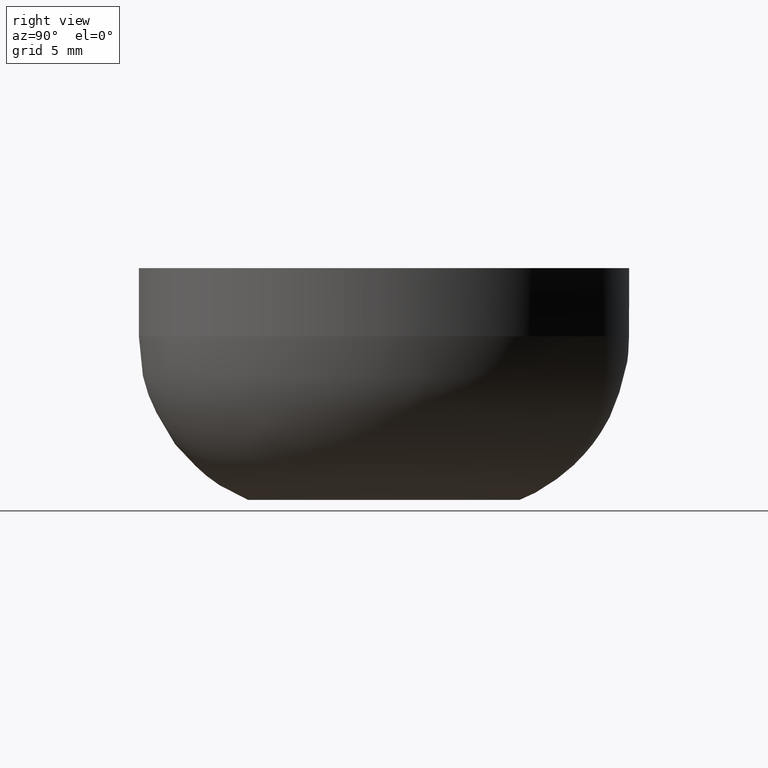
[diagram: clean part render]
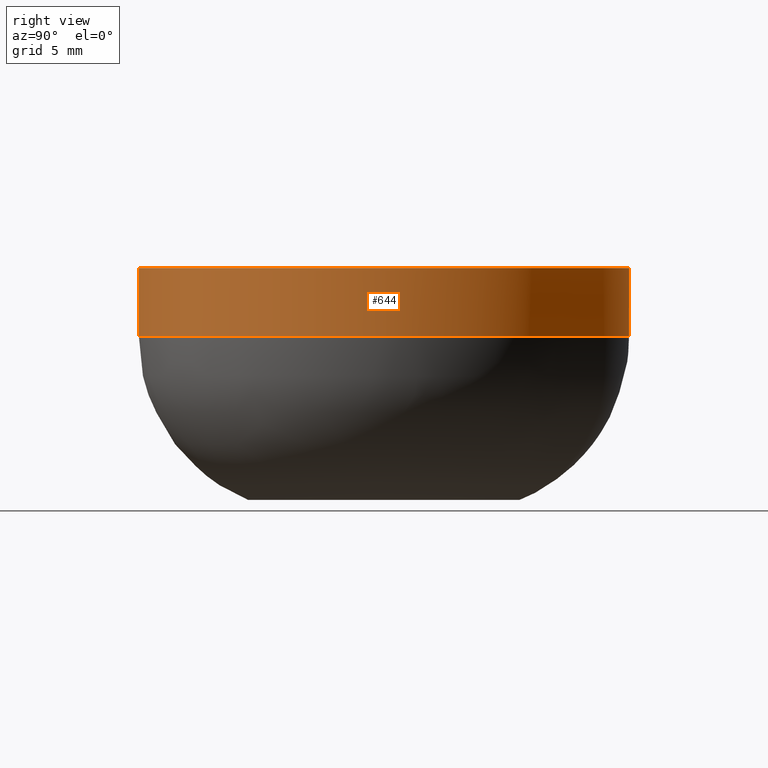
[diagram: same view with one face highlighted and labeled with its STEP entity id]
A machine part, right view. The second image highlights one B-rep face of the part: STEP entity #644.
In plain terms, the highlighted face is a freeform B-spline surface patch.
Its self-contained STEP definition (entity closure, byte-faithful):
#493=CARTESIAN_POINT('',(-16.850584417979835,-6.329123539048298,17.125000000252076));
#494=CARTESIAN_POINT('',(-17.801352348572713,-3.797810130877348,17.125000000252072));
#495=CARTESIAN_POINT('',(-17.966426371593599,-1.098873711627426,17.125000000252069));
#496=CARTESIAN_POINT('',(-19.065300083221029,16.867552659966176,17.125000000252072));
#497=CARTESIAN_POINT('',(-1.098873711627426,17.966426371593599,17.125000000252069));
#498=CARTESIAN_POINT('',(16.867552659966176,19.065300083221029,17.125000000252072));
#499=CARTESIAN_POINT('',(17.966426371593599,1.098873711627426,17.125000000252069));
#500=CARTESIAN_POINT('',(19.065300083221029,-16.867552659966176,17.125000000252072));
#501=CARTESIAN_POINT('',(1.098873711627426,-17.966426371593599,17.125000000252069));
#502=CARTESIAN_POINT('',(-16.850584417979835,-6.329123539048298,11.871874989658863));
#503=CARTESIAN_POINT('',(-17.801352348572713,-3.797810130877348,11.871874989658872));
#504=CARTESIAN_POINT('',(-17.966426371593599,-1.098873711627426,11.871874989658870));
#505=CARTESIAN_POINT('',(-19.065300083221029,16.867552659966176,11.871874989658867));
#506=CARTESIAN_POINT('',(-1.098873711627426,17.966426371593599,11.871874989658870));
#507=CARTESIAN_POINT('',(16.867552659966176,19.065300083221029,11.871874989658867));
#508=CARTESIAN_POINT('',(17.966426371593599,1.098873711627426,11.871874989658870));
#509=CARTESIAN_POINT('',(19.065300083221029,-16.867552659966176,11.871874989658867));
#510=CARTESIAN_POINT('',(1.098873711627426,-17.966426371593599,11.871874989658870));
#518=(BOUNDED_SURFACE()B_SPLINE_SURFACE(2,1,((#493,#502),(#494,#503),(#495,#504),(#496,#505),(#497,#506),(#498,#507),(#499,#508),(#500,#509),(#501,#510)),.UNSPECIFIED.,.F.,.F.,.U.)B_SPLINE_SURFACE_WITH_KNOTS((3,2,2,2,3),(2,2),(0.0,5.964675298172566,35.788051789035400,65.611428279898234,95.434804770761062),(0.0,5.253125010593206),.UNSPECIFIED.)GEOMETRIC_REPRESENTATION_ITEM()RATIONAL_B_SPLINE_SURFACE(((0.906274169979695,0.906274169979695),(0.941421356237309,0.941421356237309),(1.0,1.0),(0.707106781186548,0.707106781186548),(1.0,1.0),(0.707106781186548,0.707106781186548),(1.0,1.0),(0.707106781186548,0.707106781186548),(1.0,1.0)))REPRESENTATION_ITEM('')SURFACE());
#519=CARTESIAN_POINT('',(-16.850587385455110,-6.329115638465599,11.999999999999680));
#520=VERTEX_POINT('',#519);
#521=CARTESIAN_POINT('',(-18.0,0.0,11.999999999999440));
#522=VERTEX_POINT('',#521);
#523=CARTESIAN_POINT('',(-16.850587385455107,-6.329115638465599,11.999999999999689));
#524=CARTESIAN_POINT('',(-18.0,-3.268928590280618,11.999999999999540));
#525=CARTESIAN_POINT('',(-18.0,0.0,11.999999999999440));
#533=(BOUNDED_CURVE()B_SPLINE_CURVE(2,(#523,#524,#525),.UNSPECIFIED.,.F.,.U.)B_SPLINE_CURVE_WITH_KNOTS((3,3),(0.940284244955455,1.0),.UNSPECIFIED.)CURVE()GEOMETRIC_REPRESENTATION_ITEM()RATIONAL_B_SPLINE_CURVE((0.893499645263450,0.930038641164511,1.0))REPRESENTATION_ITEM(''));
#534=EDGE_CURVE('',#520,#522,#533,.T.);
#535=ORIENTED_EDGE('',*,*,#534,.F.);
#536=CARTESIAN_POINT('',(-16.850587348847821,-6.329115735928706,17.0));
#537=VERTEX_POINT('',#536);
#538=CARTESIAN_POINT('',(-16.850587348847821,-6.329115735928706,17.0));
#539=CARTESIAN_POINT('',(-16.850587385455110,-6.329115638465599,11.999999999999680));
#540=QUASI_UNIFORM_CURVE('',1,(#538,#539),.UNSPECIFIED.,.F.,.U.);
#541=EDGE_CURVE('',#537,#520,#540,.T.);
#542=ORIENTED_EDGE('',*,*,#541,.F.);
#543=CARTESIAN_POINT('',(-18.0,0.0,17.0));
#544=VERTEX_POINT('',#543);
#545=CARTESIAN_POINT('',(-16.850587348847817,-6.329115735928706,16.999999999999996));
#546=CARTESIAN_POINT('',(-17.999999999999996,-3.268928644053093,17.000000000000007));
#547=CARTESIAN_POINT('',(-18.0,0.0,17.0));
#555=(BOUNDED_CURVE()B_SPLINE_CURVE(2,(#545,#546,#547),.UNSPECIFIED.,.F.,.U.)B_SPLINE_CURVE_WITH_KNOTS((3,3),(0.940284244041880,1.0),.UNSPECIFIED.)CURVE()GEOMETRIC_REPRESENTATION_ITEM()RATIONAL_B_SPLINE_CURVE((0.893499644145449,0.930038640094190,1.0))REPRESENTATION_ITEM(''));
#556=EDGE_CURVE('',#537,#544,#555,.T.);
#557=ORIENTED_EDGE('',*,*,#556,.T.);
#558=CARTESIAN_POINT('',(18.0,0.0,17.0));
#559=VERTEX_POINT('',#558);
#560=CARTESIAN_POINT('',(-18.0,0.0,17.0));
#561=CARTESIAN_POINT('',(-18.000000000000007,18.000000000000007,17.000000000000007));
#562=CARTESIAN_POINT('',(0.0,18.0,17.0));
#563=CARTESIAN_POINT('',(18.000000000000007,18.000000000000007,17.000000000000007));
#564=CARTESIAN_POINT('',(18.0,0.0,17.0));
#572=(BOUNDED_CURVE()B_SPLINE_CURVE(2,(#560,#561,#562,#563,#564),.UNSPECIFIED.,.F.,.U.)B_SPLINE_CURVE_WITH_KNOTS((3,2,3),(0.0,0.250000000000000,0.500000000000000),.UNSPECIFIED.)CURVE()GEOMETRIC_REPRESENTATION_ITEM()RATIONAL_B_SPLINE_CURVE((1.0,0.707106781186547,1.0,0.707106781186547,1.0))REPRESENTATION_ITEM(''));
#573=EDGE_CURVE('',#544,#559,#572,.T.);
#574=ORIENTED_EDGE('',*,*,#573,.T.);
#575=CARTESIAN_POINT('',(1.098867361640900,-17.966426759973160,17.0));
#576=VERTEX_POINT('',#575);
#577=CARTESIAN_POINT('',(18.0,0.0,17.0));
#578=CARTESIAN_POINT('',(18.0,-16.932715200120182,16.999999999999996));
#579=CARTESIAN_POINT('',(1.098867361640900,-17.966426759973164,17.0));
#587=(BOUNDED_CURVE()B_SPLINE_CURVE(2,(#577,#578,#579),.UNSPECIFIED.,.F.,.U.)B_SPLINE_CURVE_WITH_KNOTS((3,3),(0.500000000000000,0.739333023226263),.UNSPECIFIED.)CURVE()GEOMETRIC_REPRESENTATION_ITEM()RATIONAL_B_SPLINE_CURVE((1.0,0.719603921835620,0.976072172374189))REPRESENTATION_ITEM(''));
#588=EDGE_CURVE('',#559,#576,#587,.T.);
#589=ORIENTED_EDGE('',*,*,#588,.T.);
#590=CARTESIAN_POINT('',(1.098867282374241,-17.966426764821261,12.000000000000041));
#591=VERTEX_POINT('',#590);
#592=CARTESIAN_POINT('',(1.098867361640900,-17.966426759973160,17.0));
#593=CARTESIAN_POINT('',(1.098867282374241,-17.966426764821261,12.000000000000041));
#594=QUASI_UNIFORM_CURVE('',1,(#592,#593),.UNSPECIFIED.,.F.,.U.);
#595=EDGE_CURVE('',#576,#591,#594,.T.);
#596=ORIENTED_EDGE('',*,*,#595,.T.);
#597=CARTESIAN_POINT('',(18.0,0.0,12.0));
#598=VERTEX_POINT('',#597);
#599=CARTESIAN_POINT('',(18.0,0.0,12.0));
#600=CARTESIAN_POINT('',(18.0,-16.932715274965776,12.0));
#601=CARTESIAN_POINT('',(1.098867282374240,-17.966426764821268,12.000000000000046));
#609=(BOUNDED_CURVE()B_SPLINE_CURVE(2,(#599,#600,#601),.UNSPECIFIED.,.F.,.U.)B_SPLINE_CURVE_WITH_KNOTS((3,3),(0.500000000000000,0.739333023987528),.UNSPECIFIED.)CURVE()GEOMETRIC_REPRESENTATION_ITEM()RATIONAL_B_SPLINE_CURVE((1.0,0.719603920943743,0.976072174005725))REPRESENTATION_ITEM(''));
#610=EDGE_CURVE('',#598,#591,#609,.T.);
#611=ORIENTED_EDGE('',*,*,#610,.F.);
#612=CARTESIAN_POINT('',(-2.078354027896499,17.879609742237719,11.999999989917240));
#613=VERTEX_POINT('',#612);
#614=CARTESIAN_POINT('',(-2.078354027896499,17.879609742237719,11.999999989917235));
#615=CARTESIAN_POINT('',(-1.042663863149476,18.000000000000004,11.999999999999995));
#616=CARTESIAN_POINT('',(0.0,18.0,12.0));
#617=CARTESIAN_POINT('',(18.000000000000007,18.000000000000007,12.0));
#618=CARTESIAN_POINT('',(18.0,0.0,12.0));
#626=(BOUNDED_CURVE()B_SPLINE_CURVE(2,(#614,#615,#616,#617,#618),.UNSPECIFIED.,.F.,.U.)B_SPLINE_CURVE_WITH_KNOTS((3,2,3),(0.230000019867565,0.250000000000000,0.500000000000000),.UNSPECIFIED.)CURVE()GEOMETRIC_REPRESENTATION_ITEM()RATIONAL_B_SPLINE_CURVE((0.956886157294847,0.976568565771224,1.0,0.707106781186547,1.0))REPRESENTATION_ITEM(''));
#627=EDGE_CURVE('',#613,#598,#626,.T.);
#628=ORIENTED_EDGE('',*,*,#627,.F.);
#629=CARTESIAN_POINT('',(-18.0,0.0,11.999999999999440));
#630=CARTESIAN_POINT('',(-18.000000000000007,16.028852510177483,12.000000000000002));
#631=CARTESIAN_POINT('',(-2.078354027896499,17.879609742237719,11.999999989917235));
#639=(BOUNDED_CURVE()B_SPLINE_CURVE(2,(#629,#630,#631),.UNSPECIFIED.,.F.,.U.)B_SPLINE_CURVE_WITH_KNOTS((3,3),(0.0,0.230000019867565),.UNSPECIFIED.)CURVE()GEOMETRIC_REPRESENTATION_ITEM()RATIONAL_B_SPLINE_CURVE((1.0,0.730538215415324,0.956886157294847))REPRESENTATION_ITEM(''));
#640=EDGE_CURVE('',#522,#613,#639,.T.);
#641=ORIENTED_EDGE('',*,*,#640,.F.);
#642=EDGE_LOOP('',(#535,#542,#557,#574,#589,#596,#611,#628,#641));
#643=FACE_OUTER_BOUND('',#642,.T.);
#644=ADVANCED_FACE('',(#643),#518,.T.);